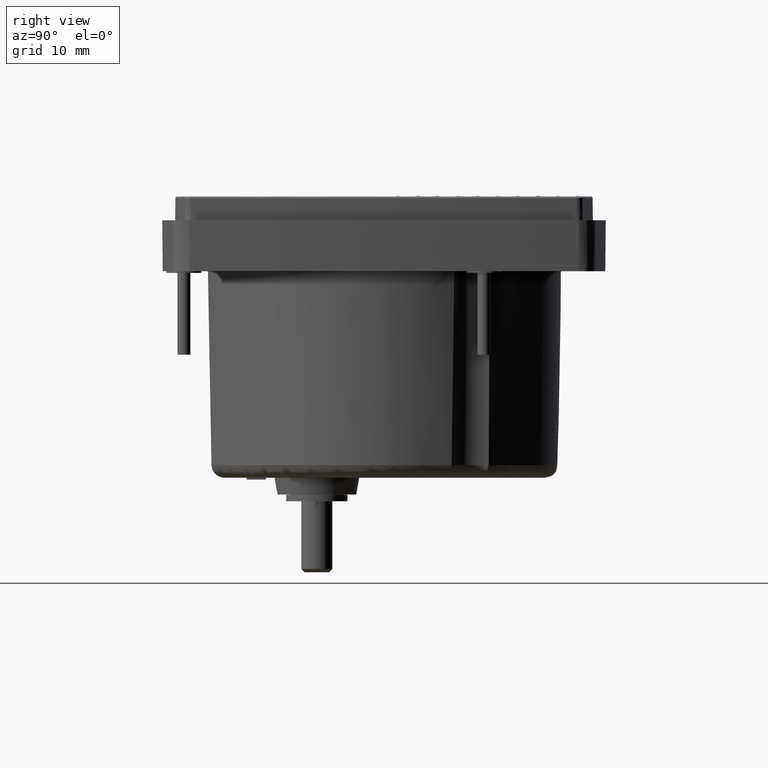
[diagram: clean part render]
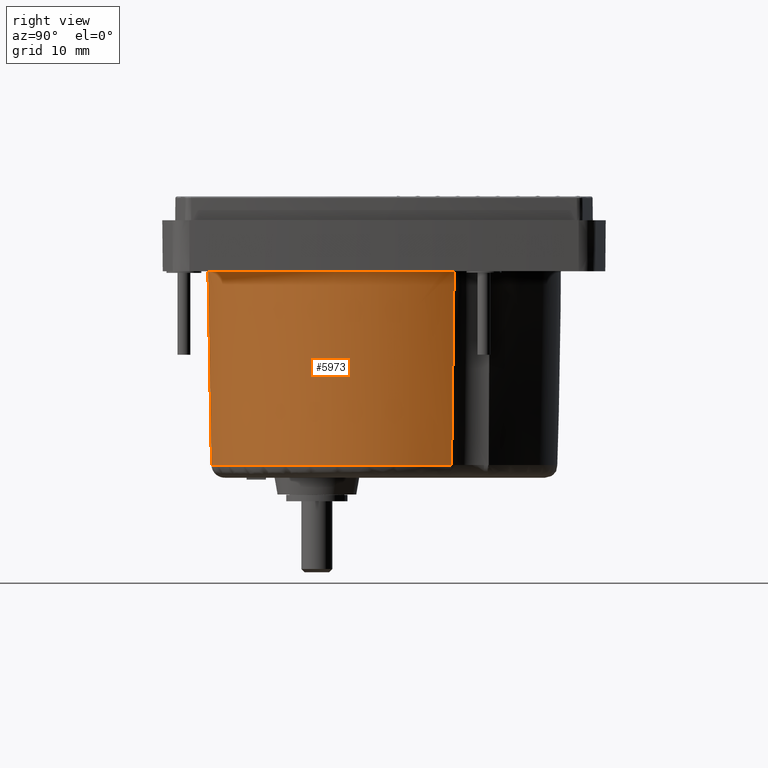
[diagram: same view with one face highlighted and labeled with its STEP entity id]
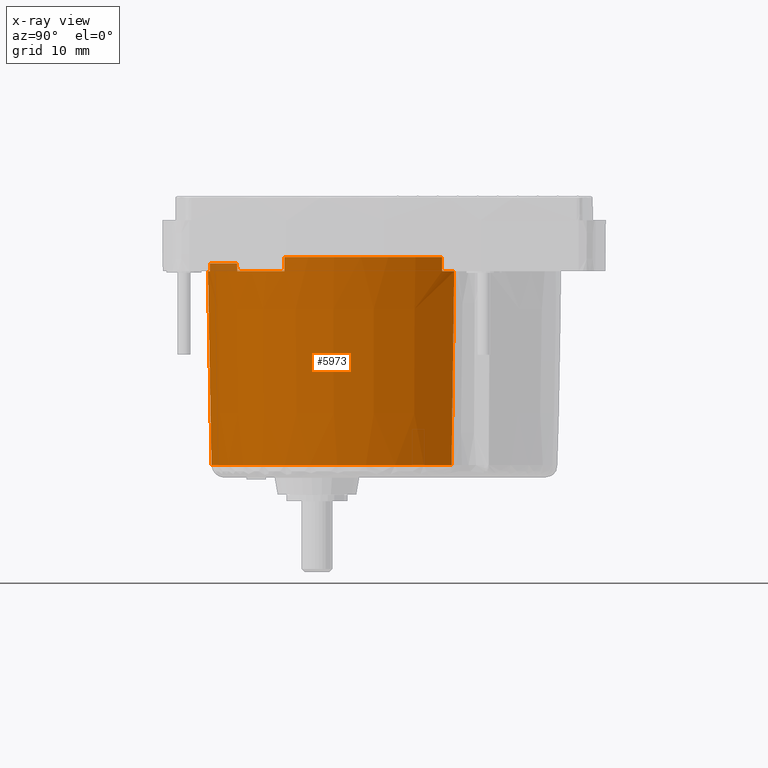
[diagram: x-ray of the same camera — body ghosted, the highlighted face saturated]
A machine part, right view. The second image highlights one B-rep face of the part: STEP entity #5973.
The next image is the same camera in x-ray: the body ghosted, the highlighted face saturated — about 0% of this face is hidden behind the body in this view.
In plain terms, the highlighted conical surface has half-angle 1 deg.
Its self-contained STEP definition (entity closure, byte-faithful):
#275 = EDGE_CURVE ( 'NONE', #41793, #31581, #9815, .T. ) ;
#409 = VERTEX_POINT ( 'NONE', #29635 ) ;
#858 = B_SPLINE_CURVE_WITH_KNOTS ( 'NONE', 3,
 ( #6667, #33187, #25554, #21417 ),
 .UNSPECIFIED., .F., .F.,
 ( 4, 4 ),
 ( 0.000000000000000000, 1.000000000000000000 ),
 .UNSPECIFIED. ) ;
#918 = CARTESIAN_POINT ( 'NONE',  ( 0.6985024779702320163, -1.276323256175724508, -0.4099072810090028662 ) ) ;
#1108 = VERTEX_POINT ( 'NONE', #48178 ) ;
#1231 = DIRECTION ( 'NONE',  ( -0.000000000000000000, 3.940052486423924545E-18, -1.000000000000000000 ) ) ;
#1434 = VERTEX_POINT ( 'NONE', #43723 ) ;
#1886 = EDGE_CURVE ( 'NONE', #4076, #4589, #46653, .T. ) ;
#2128 = DIRECTION ( 'NONE',  ( 0.000000000000000000, -3.940052486423924545E-18, 1.000000000000000000 ) ) ;
#2748 = ORIENTED_EDGE ( 'NONE', *, *, #30759, .F. ) ;
#2811 = CARTESIAN_POINT ( 'NONE',  ( 1.177549405685536454, -1.104773795392969937, -3.937007938852414417E-07 ) ) ;
#3008 = DIRECTION ( 'NONE',  ( 0.008725405116444134163, -0.01609506024895585724, 0.9998323941247035940 ) ) ;
#3035 = EDGE_LOOP ( 'NONE', ( #2748, #4062, #27839, #41659, #45175, #30680, #26871, #29707, #10922, #23360, #47310, #15451 ) ) ;
#3161 = EDGE_CURVE ( 'NONE', #1434, #31006, #14262, .T. ) ;
#3384 = VERTEX_POINT ( 'NONE', #24771 ) ;
#4062 = ORIENTED_EDGE ( 'NONE', *, *, #1886, .T. ) ;
#4076 = VERTEX_POINT ( 'NONE', #9925 ) ;
#4205 = CARTESIAN_POINT ( 'NONE',  ( 1.593579175182949559, 0.1456083466064895804, 0.04199435695538811242 ) ) ;
#4589 = VERTEX_POINT ( 'NONE', #10538 ) ;
#4764 = EDGE_CURVE ( 'NONE', #31169, #18441, #17861, .T. ) ;
#5973 = ADVANCED_FACE ( 'NONE', ( #12491 ), #43840, .T. ) ;
#6059 = EDGE_CURVE ( 'NONE', #1108, #48135, #13297, .T. ) ;
#6667 = CARTESIAN_POINT ( 'NONE',  ( 1.548326349033533500, 0.2031705925722295525, -1.198224992633031505 ) ) ;
#6990 = AXIS2_PLACEMENT_3D ( 'NONE', #44341, #43405, #21305 ) ;
#7385 = DIRECTION ( 'NONE',  ( 6.306580850319748381E-14, -1.000000000000000000, -3.945558590039882935E-18 ) ) ;
#7431 = AXIS2_PLACEMENT_3D ( 'NONE', #29714, #25790, #7385 ) ;
#8810 = DIRECTION ( 'NONE',  ( -0.000000000000000000, 3.940052486423924545E-18, -1.000000000000000000 ) ) ;
#8813 = DIRECTION ( 'NONE',  ( 0.000000000000000000, -1.000000000000000000, -7.880104972847839846E-18 ) ) ;
#9815 = CIRCLE ( 'NONE', #37241, 1.061212311381397821 ) ;
#9925 = CARTESIAN_POINT ( 'NONE',  ( 0.7743971765825334863, -1.271454485933120049, -0.01574842519686549258 ) ) ;
#10538 = CARTESIAN_POINT ( 'NONE',  ( 0.6964582343150808041, -1.283490264755581034, -0.01574842519683216507 ) ) ;
#10922 = ORIENTED_EDGE ( 'NONE', *, *, #29776, .T. ) ;
#11080 = B_SPLINE_CURVE_WITH_KNOTS ( 'NONE', 3,
 ( #33039, #2811, #25891, #43589 ),
 .UNSPECIFIED., .F., .F.,
 ( 4, 4 ),
 ( 0.000000000000000000, 1.000000000000000000 ),
 .UNSPECIFIED. ) ;
#12456 = CARTESIAN_POINT ( 'NONE',  ( 0.7004911025187446905, -1.269151310528951582, -0.8040661368211401427 ) ) ;
#12491 = FACE_OUTER_BOUND ( 'NONE', #3035, .T. ) ;
#12611 = EDGE_CURVE ( 'NONE', #18441, #1108, #11080, .T. ) ;
#13205 = CIRCLE ( 'NONE', #19477, 1.083364372634185058 ) ;
#13297 = CIRCLE ( 'NONE', #6990, 1.082677165354330784 ) ;
#13949 = DIRECTION ( 'NONE',  ( 0.000000000000000000, 0.000000000000000000, 1.000000000000000000 ) ) ;
#14262 = CIRCLE ( 'NONE', #33069, 1.081852516618506010 ) ;
#15451 = ORIENTED_EDGE ( 'NONE', *, *, #6059, .T. ) ;
#15464 = EDGE_CURVE ( 'NONE', #3384, #409, #13205, .T. ) ;
#17117 = AXIS2_PLACEMENT_3D ( 'NONE', #38972, #8810, #20807 ) ;
#17861 = CIRCLE ( 'NONE', #17117, 1.081852516618506010 ) ;
#18441 = VERTEX_POINT ( 'NONE', #24164 ) ;
#19358 = DIRECTION ( 'NONE',  ( -0.000000000000000000, 3.940052486423924545E-18, -1.000000000000000000 ) ) ;
#19477 = AXIS2_PLACEMENT_3D ( 'NONE', #34094, #19358, #45380 ) ;
#20142 = CARTESIAN_POINT ( 'NONE',  ( 0.5704286375722834590, -0.2090036857513889734, -0.01574842519686551340 ) ) ;
#20476 = CARTESIAN_POINT ( 'NONE',  ( 0.7024240842391888950, -1.261975087000438922, -1.198224992726131921 ) ) ;
#20807 = DIRECTION ( 'NONE',  ( 8.017375054961041544E-15, -1.000000000000000000, -3.945558590039882935E-18 ) ) ;
#21071 = CARTESIAN_POINT ( 'NONE',  ( 0.5704286375722834590, -0.2090036857513889734, -1.198224992633279529 ) ) ;
#21094 = AXIS2_PLACEMENT_3D ( 'NONE', #31855, #2128, #8813 ) ;
#21305 = DIRECTION ( 'NONE',  ( -1.000000000000000000, -1.766263902812748755E-15, 2.755844794790427813E-15 ) ) ;
#21417 = CARTESIAN_POINT ( 'NONE',  ( 1.563976109384537461, 0.2190947713478960668, -0.01574842519613068800 ) ) ;
#23083 = CARTESIAN_POINT ( 'NONE',  ( 1.465922340140720648, -0.8160423141541023329, -0.01574842519685425504 ) ) ;
#23360 = ORIENTED_EDGE ( 'NONE', *, *, #4764, .T. ) ;
#23600 = CARTESIAN_POINT ( 'NONE',  ( 0.7748094695490256312, -1.272215009948129749, 0.03149566929135193261 ) ) ;
#24164 = CARTESIAN_POINT ( 'NONE',  ( 1.177467265975265853, -1.104497388320214490, -0.01574842519686549258 ) ) ;
#24771 = CARTESIAN_POINT ( 'NONE',  ( 1.594107677078466567, 0.1456222974613590737, 0.07086574803151023116 ) ) ;
#25424 = B_SPLINE_CURVE_WITH_KNOTS ( 'NONE', 3,
 ( #37846, #34665, #4205, #34158 ),
 .UNSPECIFIED., .F., .F.,
 ( 4, 4 ),
 ( 0.000000000000000000, 1.000000000000000000 ),
 .UNSPECIFIED. ) ;
#25554 = CARTESIAN_POINT ( 'NONE',  ( 1.558791419715025883, 0.2137409001159238653, -0.4099072810090034769 ) ) ;
#25790 = DIRECTION ( 'NONE',  ( -0.000000000000000000, 3.940052486423924545E-18, -1.000000000000000000 ) ) ;
#25891 = CARTESIAN_POINT ( 'NONE',  ( 1.177631484534546136, -1.105050231013506190, 0.01574763779527767193 ) ) ;
#26496 = CARTESIAN_POINT ( 'NONE',  ( 1.466429031332496580, -0.8161929849186244645, 0.01312296587926133594 ) ) ;
#26776 = EDGE_CURVE ( 'NONE', #4589, #41793, #41663, .T. ) ;
#26871 = ORIENTED_EDGE ( 'NONE', *, *, #36491, .T. ) ;
#27235 = CARTESIAN_POINT ( 'NONE',  ( 1.466935818435243011, -0.8163434512592377956, 0.04199435695538811242 ) ) ;
#27431 = CARTESIAN_POINT ( 'NONE',  ( 0.7024240842391888950, -1.261975087000438922, -1.198224992726131921 ) ) ;
#27569 = CARTESIAN_POINT ( 'NONE',  ( 1.592522290306336519, 0.1455797779839598516, -0.01574842519686551340 ) ) ;
#27839 = ORIENTED_EDGE ( 'NONE', *, *, #26776, .T. ) ;
#29635 = CARTESIAN_POINT ( 'NONE',  ( 1.467442701318104392, -0.8164937131059685216, 0.07086574803151594881 ) ) ;
#29707 = ORIENTED_EDGE ( 'NONE', *, *, #15464, .T. ) ;
#29714 = CARTESIAN_POINT ( 'NONE',  ( 0.5704286375722834590, -0.2090036857513889734, -0.01574842519686549258 ) ) ;
#29776 = EDGE_CURVE ( 'NONE', #409, #31169, #44946, .T. ) ;
#30333 = VECTOR ( 'NONE', #3008, 39.37007874015748854 ) ;
#30431 = CARTESIAN_POINT ( 'NONE',  ( 1.467442701318104392, -0.8164937131059685216, 0.07086574803151594881 ) ) ;
#30664 = CARTESIAN_POINT ( 'NONE',  ( 1.548326349033533500, 0.2031705925722295525, -1.198224992633031505 ) ) ;
#30680 = ORIENTED_EDGE ( 'NONE', *, *, #3161, .T. ) ;
#30759 = EDGE_CURVE ( 'NONE', #4076, #48135, #47697, .T. ) ;
#31006 = VERTEX_POINT ( 'NONE', #27569 ) ;
#31169 = VERTEX_POINT ( 'NONE', #39566 ) ;
#31581 = VERTEX_POINT ( 'NONE', #30664 ) ;
#31855 = CARTESIAN_POINT ( 'NONE',  ( 0.5704286375722834590, -0.2090036857513889734, 0.07086574803151575452 ) ) ;
#33039 = CARTESIAN_POINT ( 'NONE',  ( 1.177467265975265853, -1.104497388320214490, -0.01574842519686549258 ) ) ;
#33069 = AXIS2_PLACEMENT_3D ( 'NONE', #20142, #1231, #38303 ) ;
#33187 = CARTESIAN_POINT ( 'NONE',  ( 1.553574644864615717, 0.2084327279149353895, -0.8040661368211413640 ) ) ;
#34094 = CARTESIAN_POINT ( 'NONE',  ( 0.5704286375722834590, -0.2090036857513889734, 0.07086574803151693414 ) ) ;
#34158 = CARTESIAN_POINT ( 'NONE',  ( 1.594107677078466567, 0.1456222974613590737, 0.07086574803151023116 ) ) ;
#34665 = CARTESIAN_POINT ( 'NONE',  ( 1.593050712877378539, 0.1455941734361085316, 0.01312296587926133594 ) ) ;
#35265 = EDGE_CURVE ( 'NONE', #31581, #1434, #858, .T. ) ;
#36491 = EDGE_CURVE ( 'NONE', #31006, #3384, #25424, .T. ) ;
#37241 = AXIS2_PLACEMENT_3D ( 'NONE', #21071, #13949, #43428 ) ;
#37846 = CARTESIAN_POINT ( 'NONE',  ( 1.592522290306336519, 0.1455797779839598516, -0.01574842519686551340 ) ) ;
#38303 = DIRECTION ( 'NONE',  ( 1.332020579997464554E-14, -1.000000000000000000, -3.945558590039882935E-18 ) ) ;
#38972 = CARTESIAN_POINT ( 'NONE',  ( 0.5704286375722834590, -0.2090036857513889734, -0.01574842519686549258 ) ) ;
#39566 = CARTESIAN_POINT ( 'NONE',  ( 1.465922340140720648, -0.8160423141541023329, -0.01574842519685425504 ) ) ;
#40108 = CARTESIAN_POINT ( 'NONE',  ( 0.7743971765825334863, -1.271454485932641765, -0.01574842519684301403 ) ) ;
#41659 = ORIENTED_EDGE ( 'NONE', *, *, #275, .T. ) ;
#41663 = B_SPLINE_CURVE_WITH_KNOTS ( 'NONE', 3,
 ( #42658, #918, #12456, #27431 ),
 .UNSPECIFIED., .F., .F.,
 ( 4, 4 ),
 ( 0.000000000000000000, 1.000000000000000000 ),
 .UNSPECIFIED. ) ;
#41793 = VERTEX_POINT ( 'NONE', #20476 ) ;
#42658 = CARTESIAN_POINT ( 'NONE',  ( 0.6964582343150808041, -1.283490264755581034, -0.01574842519683216507 ) ) ;
#43405 = DIRECTION ( 'NONE',  ( -0.000000000000000000, -0.000000000000000000, -1.000000000000000000 ) ) ;
#43428 = DIRECTION ( 'NONE',  ( -1.000000000000000000, 0.000000000000000000, 2.059416736398898916E-15 ) ) ;
#43589 = CARTESIAN_POINT ( 'NONE',  ( 1.177713502510826737, -1.105326695160535388, 0.03149566929134822724 ) ) ;
#43723 = CARTESIAN_POINT ( 'NONE',  ( 1.563976109384537461, 0.2190947713478960668, -0.01574842519613068800 ) ) ;
#43840 = CONICAL_SURFACE ( 'NONE', #21094, 1.083364372634185058, 0.01745329250000015112 ) ;
#44341 = CARTESIAN_POINT ( 'NONE',  ( 0.5704286375722834590, -0.2090036857513889734, 0.03149566929134626353 ) ) ;
#44946 = B_SPLINE_CURVE_WITH_KNOTS ( 'NONE', 3,
 ( #30431, #27235, #26496, #23083 ),
 .UNSPECIFIED., .F., .F.,
 ( 4, 4 ),
 ( 0.000000000000000000, 1.000000000000000000 ),
 .UNSPECIFIED. ) ;
#45175 = ORIENTED_EDGE ( 'NONE', *, *, #35265, .T. ) ;
#45380 = DIRECTION ( 'NONE',  ( 8.825717569589580135E-16, -1.000000000000000000, -7.880104972847839846E-18 ) ) ;
#46653 = CIRCLE ( 'NONE', #7431, 1.081852516618506010 ) ;
#47310 = ORIENTED_EDGE ( 'NONE', *, *, #12611, .T. ) ;
#47697 = LINE ( 'NONE', #40108, #30333 ) ;
#48135 = VERTEX_POINT ( 'NONE', #23600 ) ;
#48178 = CARTESIAN_POINT ( 'NONE',  ( 1.177713502510826737, -1.105326695160535388, 0.03149566929134822724 ) ) ;